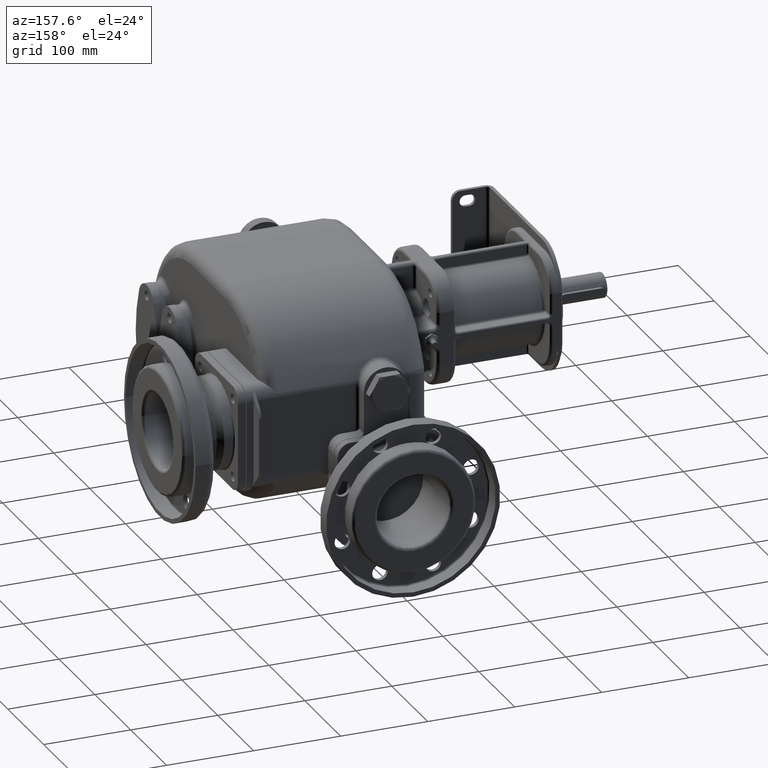
[diagram: clean part render]
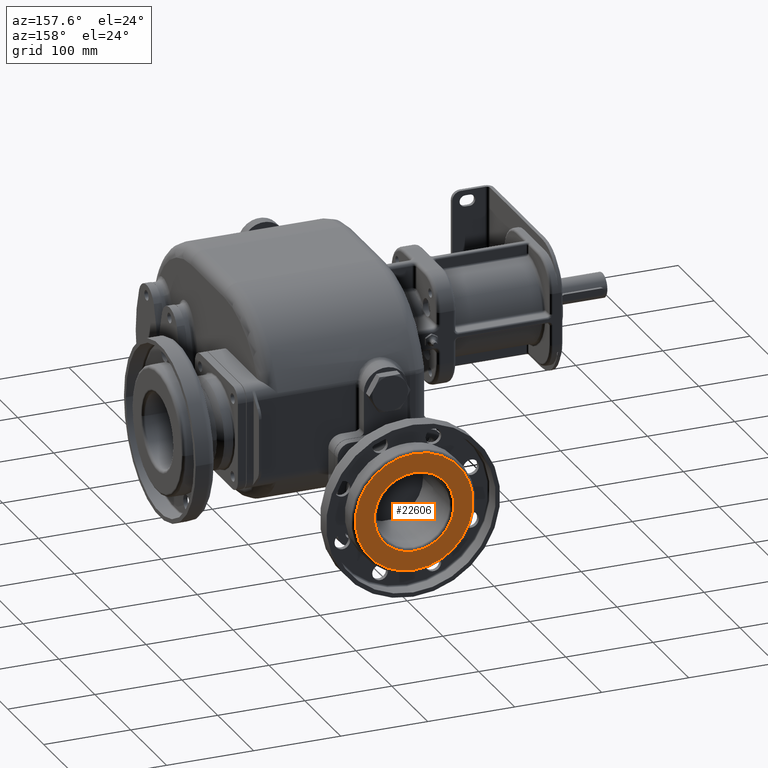
[diagram: same view with one face highlighted and labeled with its STEP entity id]
A machine part, auxiliary view. The second image highlights one B-rep face of the part: STEP entity #22606.
In plain terms, the highlighted planar face has unit normal (0, 1, 0).
Its self-contained STEP definition (entity closure, byte-faithful):
#2848=CARTESIAN_POINT('',(-1.200400455419E-14,4.2E2,-8.3E1));
#2849=DIRECTION('',(0.E0,-1.E0,0.E0));
#2850=DIRECTION('',(0.E0,0.E0,1.E0));
#2851=AXIS2_PLACEMENT_3D('',#2848,#2849,#2850);
#2853=CARTESIAN_POINT('',(-1.200400455419E-14,4.2E2,-8.3E1));
#2854=DIRECTION('',(0.E0,1.E0,0.E0));
#2855=DIRECTION('',(0.E0,0.E0,1.E0));
#2856=AXIS2_PLACEMENT_3D('',#2853,#2854,#2855);
#2858=CARTESIAN_POINT('',(-1.200400455419E-14,4.2E2,-8.3E1));
#2859=DIRECTION('',(0.E0,-1.E0,0.E0));
#2860=DIRECTION('',(0.E0,0.E0,1.E0));
#2861=AXIS2_PLACEMENT_3D('',#2858,#2859,#2860);
#2863=CARTESIAN_POINT('',(-1.200400455419E-14,4.2E2,-8.3E1));
#2864=DIRECTION('',(0.E0,1.E0,0.E0));
#2865=DIRECTION('',(0.E0,0.E0,1.E0));
#2866=AXIS2_PLACEMENT_3D('',#2863,#2864,#2865);
#17190=CARTESIAN_POINT('',(0.E0,4.2E2,-3.735E1));
#17191=VERTEX_POINT('',#17190);
#17192=CARTESIAN_POINT('',(0.E0,4.2E2,-1.525E1));
#17194=VERTEX_POINT('',#17192);
#17204=CARTESIAN_POINT('',(-2.318502983041E-14,4.2E2,-1.2865E2));
#17205=VERTEX_POINT('',#17204);
#17206=CARTESIAN_POINT('',(-2.859796868264E-14,4.2E2,-1.5075E2));
#17208=VERTEX_POINT('',#17206);
#22591=CARTESIAN_POINT('',(-1.200400455419E-14,4.2E2,-8.3E1));
#22592=DIRECTION('',(0.E0,1.E0,0.E0));
#22593=DIRECTION('',(0.E0,0.E0,-1.E0));
#22594=AXIS2_PLACEMENT_3D('',#22591,#22592,#22593);
#22595=PLANE('',#22594);
#22596=ORIENTED_EDGE('',*,*,#22584,.F.);
#22597=ORIENTED_EDGE('',*,*,#22573,.T.);
#22598=EDGE_LOOP('',(#22596,#22597));
#22599=FACE_OUTER_BOUND('',#22598,.F.);
#22601=ORIENTED_EDGE('',*,*,#22600,.F.);
#22603=ORIENTED_EDGE('',*,*,#22602,.T.);
#22604=EDGE_LOOP('',(#22601,#22603));
#22605=FACE_BOUND('',#22604,.F.);
#22606=ADVANCED_FACE('',(#22599,#22605),#22595,.T.);
#2852=CIRCLE('',#2851,6.775E1);
#2857=CIRCLE('',#2856,6.775E1);
#2862=CIRCLE('',#2861,4.565E1);
#2867=CIRCLE('',#2866,4.565E1);
#22573=EDGE_CURVE('',#17194,#17208,#2852,.T.);
#22584=EDGE_CURVE('',#17194,#17208,#2857,.T.);
#22600=EDGE_CURVE('',#17191,#17205,#2862,.T.);
#22602=EDGE_CURVE('',#17191,#17205,#2867,.T.);